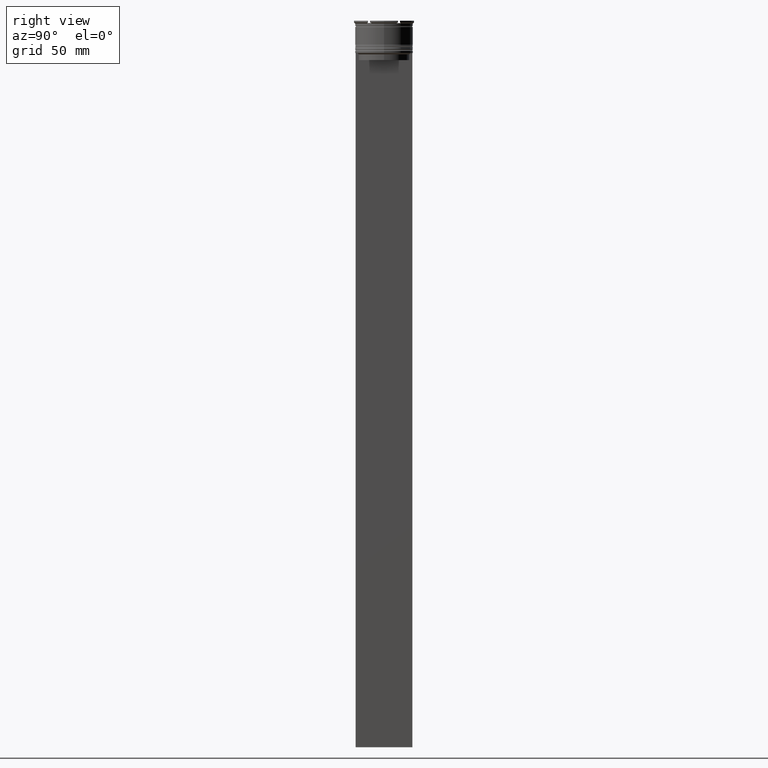
[diagram: clean part render]
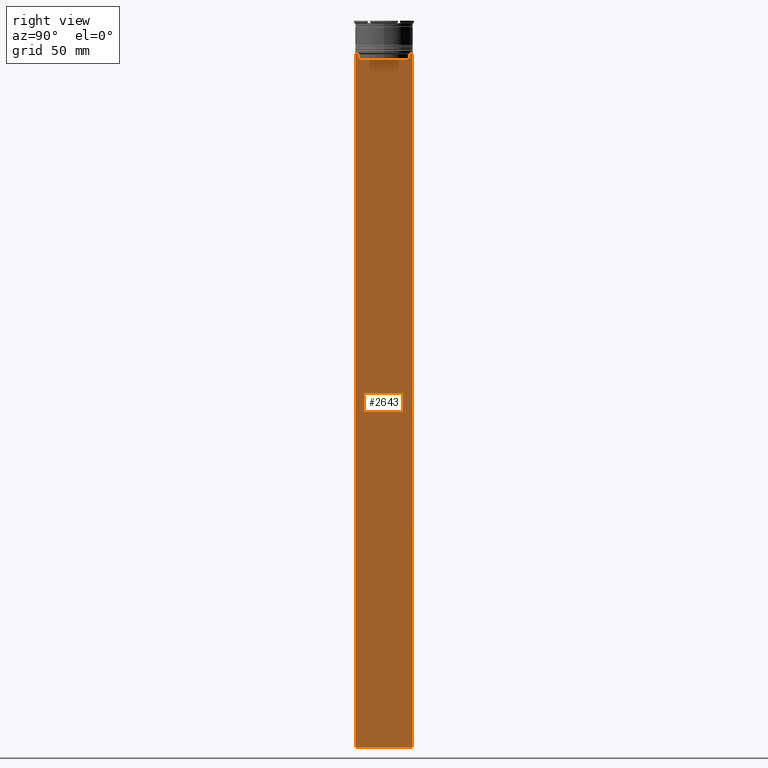
[diagram: same view with one face highlighted and labeled with its STEP entity id]
A machine part, right view. The second image highlights one B-rep face of the part: STEP entity #2643.
In plain terms, the highlighted planar face has unit normal (-1, 0, 0).
Its self-contained STEP definition (entity closure, byte-faithful):
#23 = ORIENTED_EDGE ( 'NONE', *, *, #2607, .T. ) ;
#45 = FACE_OUTER_BOUND ( 'NONE', #995, .T. ) ;
#66 = VERTEX_POINT ( 'NONE', #949 ) ;
#76 = LINE ( 'NONE', #2229, #1906 ) ;
#88 = CARTESIAN_POINT ( 'NONE',  ( 0.5000000000000002220, -10.88852607105296322, 0.000000000000000000 ) ) ;
#124 = VERTEX_POINT ( 'NONE', #2201 ) ;
#174 = DIRECTION ( 'NONE',  ( 0.000000000000000000, 0.000000000000000000, -1.000000000000000000 ) ) ;
#200 = B_SPLINE_CURVE_WITH_KNOTS ( 'NONE', 3,
 ( #1702, #1648, #1216, #1249 ),
 .UNSPECIFIED., .F., .F.,
 ( 4, 4 ),
 ( 0.05041323384703228633, 0.05112713601261608537 ),
 .UNSPECIFIED. ) ;
#272 = VECTOR ( 'NONE', #2400, 1000.000000000000000 ) ;
#343 = DIRECTION ( 'NONE',  ( 0.000000000000000000, 0.000000000000000000, -1.000000000000000000 ) ) ;
#374 = ORIENTED_EDGE ( 'NONE', *, *, #800, .T. ) ;
#457 = EDGE_CURVE ( 'NONE', #124, #1514, #2110, .T. ) ;
#476 = ORIENTED_EDGE ( 'NONE', *, *, #1466, .T. ) ;
#554 = VERTEX_POINT ( 'NONE', #1129 ) ;
#569 = VECTOR ( 'NONE', #1559, 1000.000000000000000 ) ;
#587 = EDGE_CURVE ( 'NONE', #1698, #1892, #1553, .T. ) ;
#595 = CARTESIAN_POINT ( 'NONE',  ( 0.5000000000000002220, -10.88852607105296144, -17.00000000000000000 ) ) ;
#619 = CARTESIAN_POINT ( 'NONE',  ( 0.5000000000000002220, 11.05536450345590538, -14.33333719074559376 ) ) ;
#622 = CARTESIAN_POINT ( 'NONE',  ( 0.5000000000000002220, -12.25000000000000711, -314.0000000000000000 ) ) ;
#692 = ORIENTED_EDGE ( 'NONE', *, *, #1105, .T. ) ;
#707 = VERTEX_POINT ( 'NONE', #1143 ) ;
#720 = CARTESIAN_POINT ( 'NONE',  ( 0.5000000000000002220, -12.25000000000000711, 10.52039967047845792 ) ) ;
#760 = VERTEX_POINT ( 'NONE', #1370 ) ;
#800 = EDGE_CURVE ( 'NONE', #2294, #707, #2019, .T. ) ;
#819 = CARTESIAN_POINT ( 'NONE',  ( 0.5000000000000002220, 12.24999999999999289, 10.52039967047845792 ) ) ;
#850 = LINE ( 'NONE', #622, #2317 ) ;
#859 = CARTESIAN_POINT ( 'NONE',  ( 0.5000000000000002220, 10.90000000000000213, -17.00000000000000000 ) ) ;
#874 = ORIENTED_EDGE ( 'NONE', *, *, #1916, .T. ) ;
#928 = EDGE_CURVE ( 'NONE', #1698, #66, #1871, .T. ) ;
#931 = DIRECTION ( 'NONE',  ( 0.000000000000000000, -1.000000000000000000, 0.000000000000000000 ) ) ;
#949 = CARTESIAN_POINT ( 'NONE',  ( 0.5000000000000002220, 12.24999999999999289, -314.0000000000000000 ) ) ;
#951 = CARTESIAN_POINT ( 'NONE',  ( 0.5000000000000002220, 11.38902980942626719, -14.00000000000000178 ) ) ;
#954 = LINE ( 'NONE', #988, #1989 ) ;
#976 = DIRECTION ( 'NONE',  ( -1.000000000000000000, 0.000000000000000000, 0.000000000000000000 ) ) ;
#988 = CARTESIAN_POINT ( 'NONE',  ( 0.5000000000000002220, 10.88852607105296322, 0.000000000000000000 ) ) ;
#995 = EDGE_LOOP ( 'NONE', ( #1038, #2280, #476, #1020, #23, #1551, #692, #374, #874, #2556 ) ) ;
#1020 = ORIENTED_EDGE ( 'NONE', *, *, #457, .T. ) ;
#1038 = ORIENTED_EDGE ( 'NONE', *, *, #587, .T. ) ;
#1105 = EDGE_CURVE ( 'NONE', #554, #2294, #76, .T. ) ;
#1129 = CARTESIAN_POINT ( 'NONE',  ( 0.5000000000000002220, -11.38902980942626719, -14.00000000000000178 ) ) ;
#1133 = B_SPLINE_CURVE_WITH_KNOTS ( 'NONE', 3,
 ( #2304, #2559, #619, #1700 ),
 .UNSPECIFIED., .F., .F.,
 ( 4, 4 ),
 ( 0.01935560801904634073, 0.02006307108468586772 ),
 .UNSPECIFIED. ) ;
#1137 = CARTESIAN_POINT ( 'NONE',  ( 0.5000000000000002220, 10.88852607105296322, -14.50000000000000000 ) ) ;
#1143 = CARTESIAN_POINT ( 'NONE',  ( 0.5000000000000002220, -12.25000000000000711, -314.0000000000000000 ) ) ;
#1151 = LINE ( 'NONE', #88, #569 ) ;
#1164 = PLANE ( 'NONE',  #2226 ) ;
#1216 = CARTESIAN_POINT ( 'NONE',  ( 0.5000000000000002220, -11.22219891450652973, -14.16667035398018903 ) ) ;
#1249 = CARTESIAN_POINT ( 'NONE',  ( 0.5000000000000002220, -11.38902980942626719, -14.00000000000000178 ) ) ;
#1370 = CARTESIAN_POINT ( 'NONE',  ( 0.5000000000000002220, -10.88852607105296322, -14.50000000000000000 ) ) ;
#1466 = EDGE_CURVE ( 'NONE', #2601, #124, #954, .T. ) ;
#1497 = DIRECTION ( 'NONE',  ( 0.000000000000000000, -1.000000000000000000, 0.000000000000000000 ) ) ;
#1514 = VERTEX_POINT ( 'NONE', #595 ) ;
#1551 = ORIENTED_EDGE ( 'NONE', *, *, #1940, .T. ) ;
#1553 = LINE ( 'NONE', #1783, #272 ) ;
#1559 = DIRECTION ( 'NONE',  ( -0.000000000000000000, -0.000000000000000000, 1.000000000000000000 ) ) ;
#1648 = CARTESIAN_POINT ( 'NONE',  ( 0.5000000000000002220, -11.05536450423839057, -14.33333718996393280 ) ) ;
#1677 = DIRECTION ( 'NONE',  ( 0.000000000000000000, 1.000000000000000000, 0.000000000000000000 ) ) ;
#1698 = VERTEX_POINT ( 'NONE', #2373 ) ;
#1700 = CARTESIAN_POINT ( 'NONE',  ( 0.5000000000000002220, 10.88852607105296322, -14.50000000000000000 ) ) ;
#1702 = CARTESIAN_POINT ( 'NONE',  ( 0.5000000000000002220, -10.88852607105296322, -14.50000000000000000 ) ) ;
#1719 = VECTOR ( 'NONE', #343, 1000.000000000000000 ) ;
#1764 = VECTOR ( 'NONE', #174, 1000.000000000000000 ) ;
#1783 = CARTESIAN_POINT ( 'NONE',  ( 0.5000000000000002220, -12.25000000000000711, -14.00000000000000178 ) ) ;
#1819 = DIRECTION ( 'NONE',  ( 0.000000000000000000, 0.000000000000000000, 1.000000000000000000 ) ) ;
#1846 = DIRECTION ( 'NONE',  ( 0.000000000000000000, 0.000000000000000000, -1.000000000000000000 ) ) ;
#1871 = LINE ( 'NONE', #819, #1764 ) ;
#1892 = VERTEX_POINT ( 'NONE', #951 ) ;
#1906 = VECTOR ( 'NONE', #931, 1000.000000000000000 ) ;
#1916 = EDGE_CURVE ( 'NONE', #707, #66, #850, .T. ) ;
#1940 = EDGE_CURVE ( 'NONE', #760, #554, #200, .T. ) ;
#1989 = VECTOR ( 'NONE', #1846, 1000.000000000000000 ) ;
#2019 = LINE ( 'NONE', #2694, #1719 ) ;
#2110 = LINE ( 'NONE', #859, #2386 ) ;
#2201 = CARTESIAN_POINT ( 'NONE',  ( 0.5000000000000002220, 10.88852607105296144, -17.00000000000000000 ) ) ;
#2226 = AXIS2_PLACEMENT_3D ( 'NONE', #720, #976, #1819 ) ;
#2229 = CARTESIAN_POINT ( 'NONE',  ( 0.5000000000000002220, -12.25000000000000711, -14.00000000000000178 ) ) ;
#2258 = CARTESIAN_POINT ( 'NONE',  ( 0.5000000000000002220, -12.25000000000000711, -14.00000000000000178 ) ) ;
#2280 = ORIENTED_EDGE ( 'NONE', *, *, #2340, .T. ) ;
#2294 = VERTEX_POINT ( 'NONE', #2258 ) ;
#2304 = CARTESIAN_POINT ( 'NONE',  ( 0.5000000000000002220, 11.38902980942626719, -14.00000000000000178 ) ) ;
#2317 = VECTOR ( 'NONE', #1677, 1000.000000000000000 ) ;
#2340 = EDGE_CURVE ( 'NONE', #1892, #2601, #1133, .T. ) ;
#2373 = CARTESIAN_POINT ( 'NONE',  ( 0.5000000000000002220, 12.24999999999999289, -14.00000000000000178 ) ) ;
#2386 = VECTOR ( 'NONE', #1497, 1000.000000000000000 ) ;
#2400 = DIRECTION ( 'NONE',  ( 0.000000000000000000, -1.000000000000000000, 0.000000000000000000 ) ) ;
#2556 = ORIENTED_EDGE ( 'NONE', *, *, #928, .F. ) ;
#2559 = CARTESIAN_POINT ( 'NONE',  ( 0.5000000000000002220, 11.22219891375843304, -14.16667035472756808 ) ) ;
#2601 = VERTEX_POINT ( 'NONE', #1137 ) ;
#2607 = EDGE_CURVE ( 'NONE', #1514, #760, #1151, .T. ) ;
#2643 = ADVANCED_FACE ( 'NONE', ( #45 ), #1164, .F. ) ;
#2694 = CARTESIAN_POINT ( 'NONE',  ( 0.5000000000000002220, -12.25000000000000711, 10.52039967047845792 ) ) ;